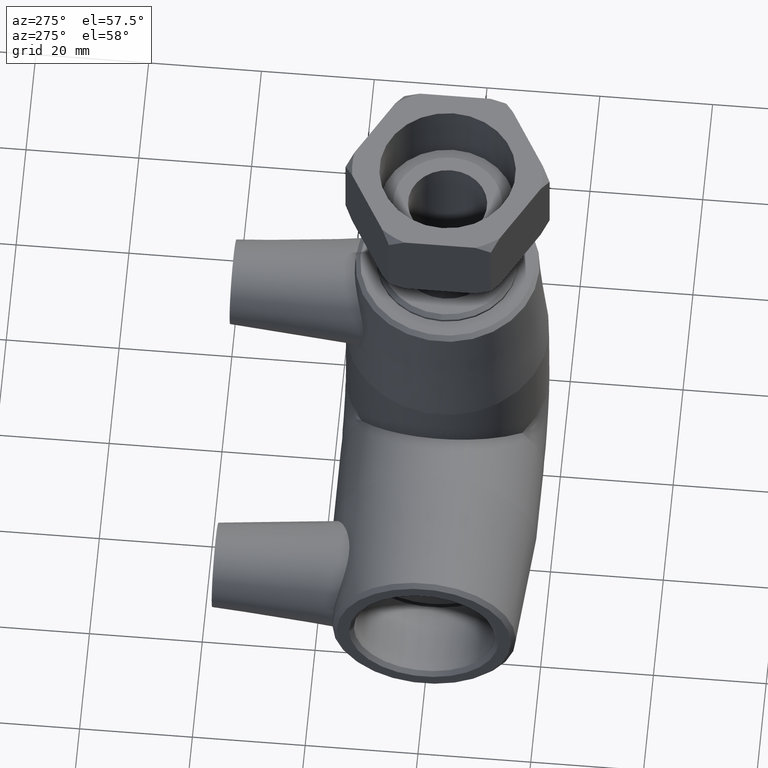
[diagram: clean part render]
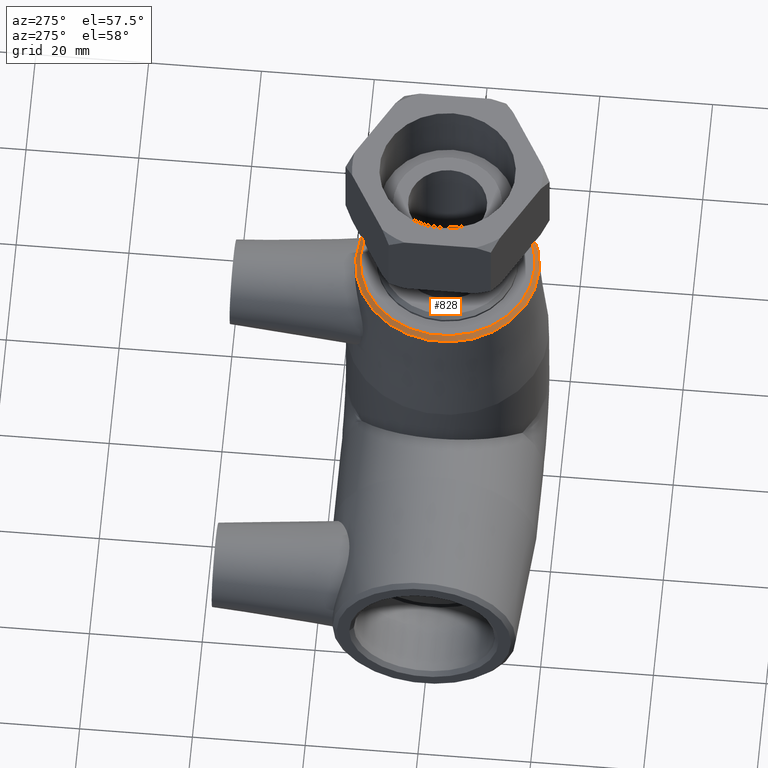
[diagram: same view with one face highlighted and labeled with its STEP entity id]
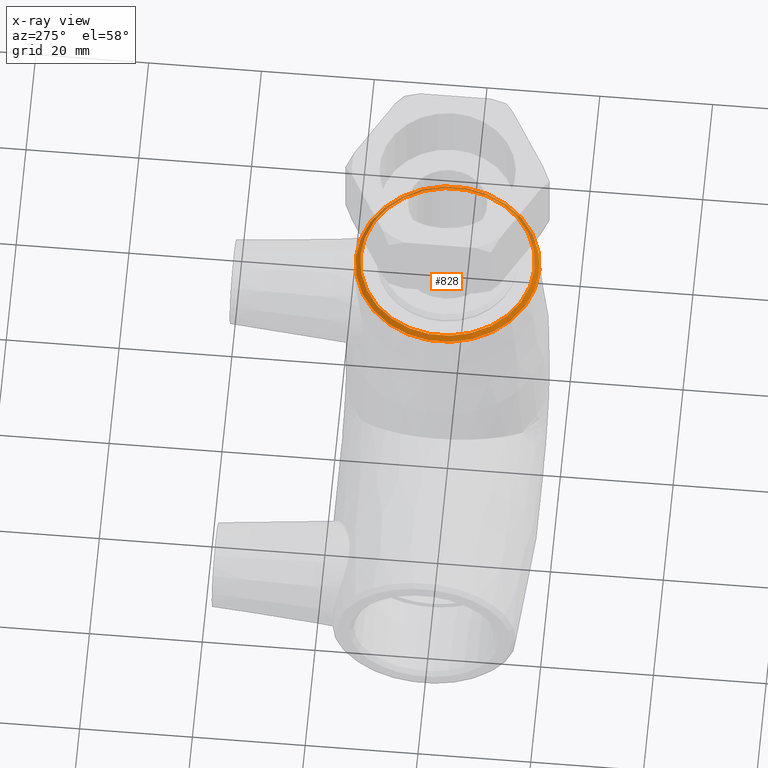
[diagram: x-ray of the same camera — body ghosted, the highlighted face saturated]
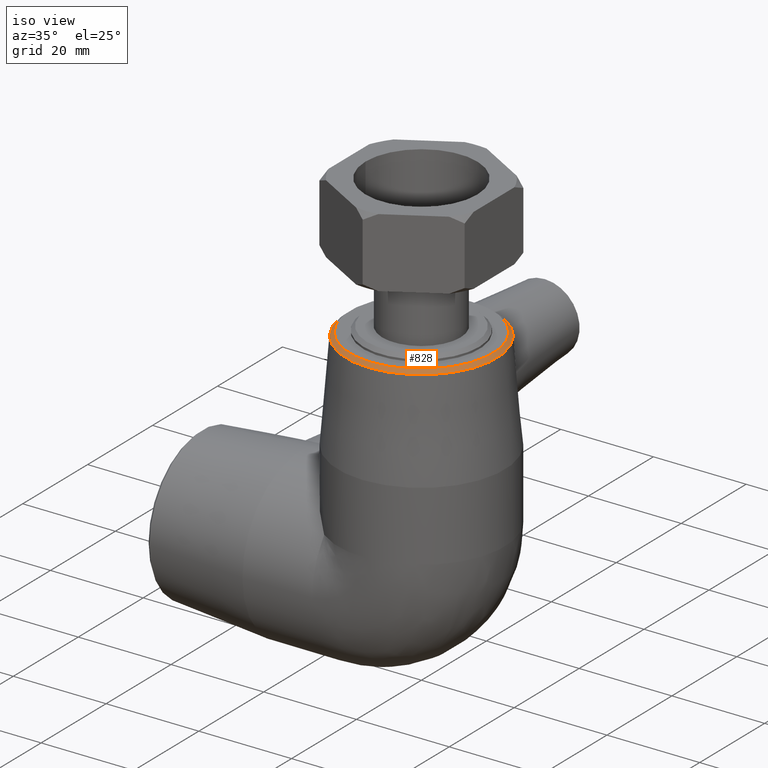
[diagram: same view with one face highlighted and labeled with its STEP entity id]
A machine part, auxiliary view. The second image highlights one B-rep face of the part: STEP entity #828.
The next image is the same camera in x-ray: the body ghosted, the highlighted face saturated — about 23% of this face is hidden behind the body in this view.
A second angle (iso view) of the same face is appended — the face is thin or edge-on in the first view.
In plain terms, the highlighted conical surface has half-angle 47.339 deg.
Its self-contained STEP definition (entity closure, byte-faithful):
#137=FACE_BOUND('',#275,.T.);
#197=FACE_OUTER_BOUND('',#274,.T.);
#274=EDGE_LOOP('',(#704));
#275=EDGE_LOOP('',(#705));
#362=CIRCLE('',#923,15.45);
#363=CIRCLE('',#924,16.2611592711579);
#441=VERTEX_POINT('',#1482);
#442=VERTEX_POINT('',#1484);
#539=EDGE_CURVE('',#441,#441,#362,.T.);
#540=EDGE_CURVE('',#442,#442,#363,.T.);
#704=ORIENTED_EDGE('',*,*,#539,.T.);
#705=ORIENTED_EDGE('',*,*,#540,.T.);
#792=CONICAL_SURFACE('',#922,15.855579635579,47.3387089294409);
#828=ADVANCED_FACE('',(#197,#137),#792,.T.);
#922=AXIS2_PLACEMENT_3D('',#1481,#1119,#1120);
#923=AXIS2_PLACEMENT_3D('',#1483,#1121,#1122);
#924=AXIS2_PLACEMENT_3D('',#1485,#1123,#1124);
#1119=DIRECTION('center_axis',(-1.27081568417077E-15,7.72946194627248E-33,
-1.));
#1120=DIRECTION('ref_axis',(-3.13993198444203E-17,-1.,1.40862492993217E-18));
#1121=DIRECTION('center_axis',(6.12323399573677E-17,-2.89120579329468E-18,
-1.));
#1122=DIRECTION('ref_axis',(-1.77035296021731E-34,-1.,2.89120579329468E-18));
#1123=DIRECTION('center_axis',(0.,0.,1.));
#1124=DIRECTION('ref_axis',(-6.12323399573677E-17,-1.,0.));
#1481=CARTESIAN_POINT('Origin',(-3.41412107974212E-15,-2.88889491658085E-33,
47.6262488984794));
#1482=CARTESIAN_POINT('',(-1.04707301327099E-15,15.45,48.));
#1483=CARTESIAN_POINT('Origin',(-2.93915231795365E-15,-5.77778983316171E-33,
48.));
#1484=CARTESIAN_POINT('',(-4.88479867412303E-15,16.2611592711579,47.2524977969588));
#1485=CARTESIAN_POINT('Origin',(-3.88908984153059E-15,0.,47.2524977969588));